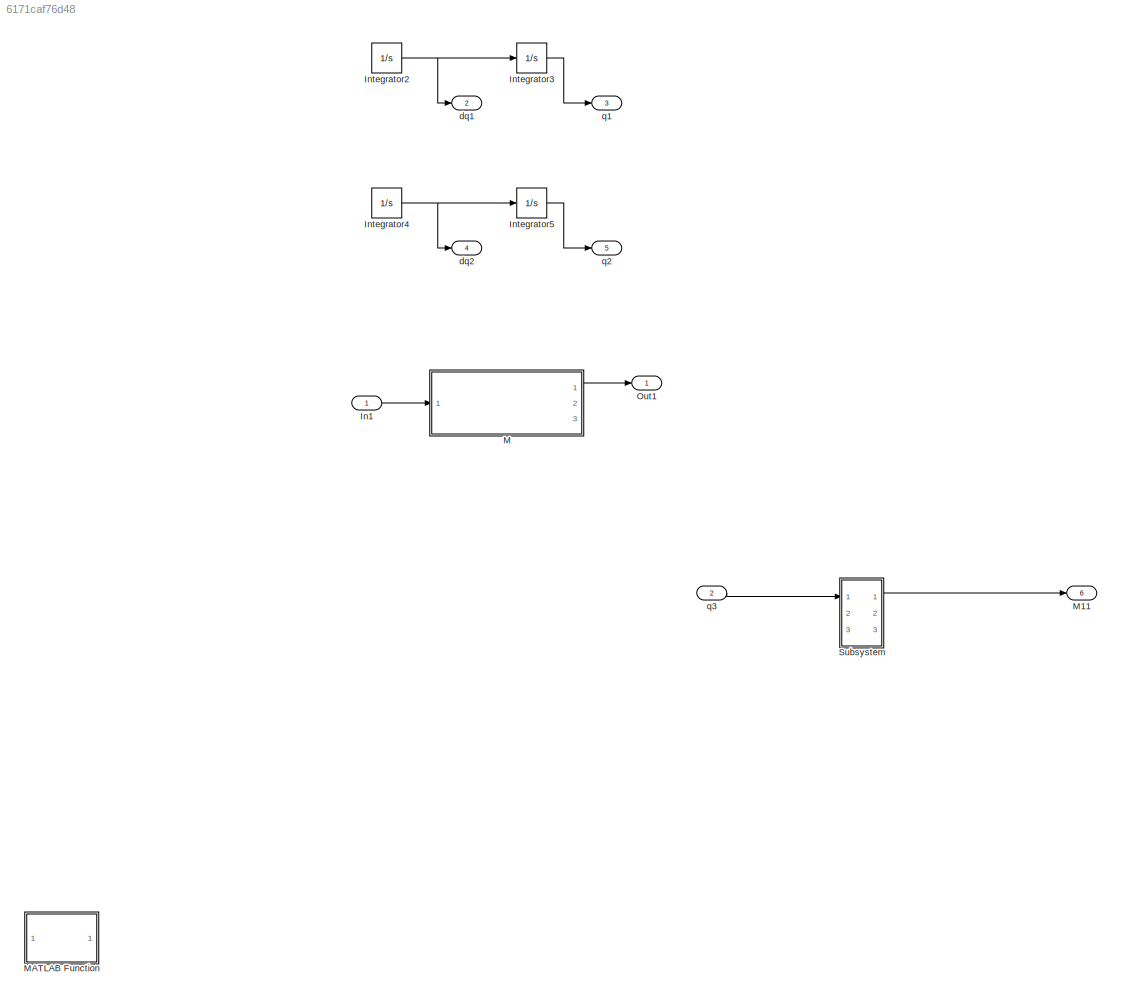
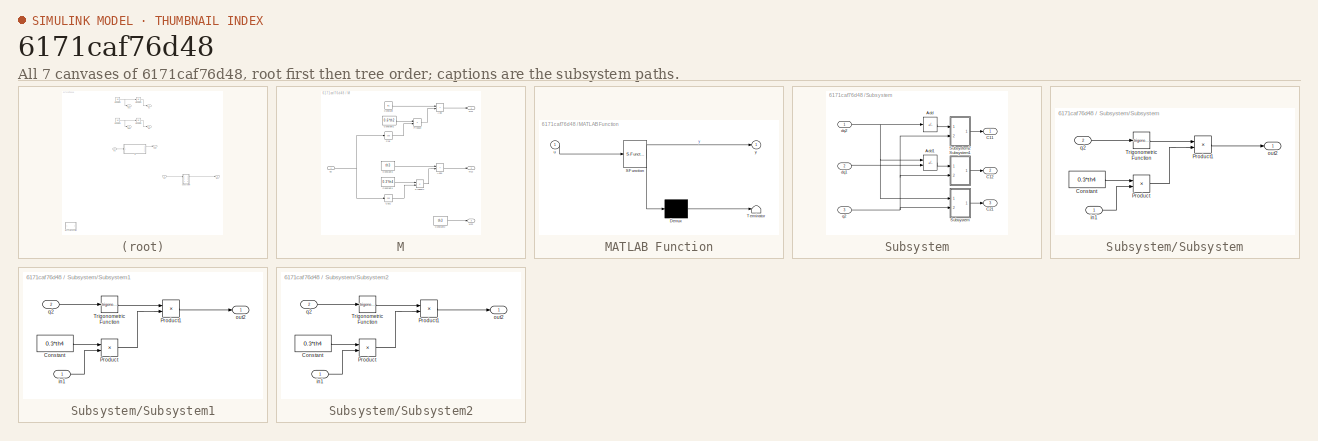
[diagram: thumbnail index - all 7 canvases of the model, root first then tree order]
MODEL slx_6171caf76d48
KIND model
CONFIG AbsTol = auto
CONFIG EnableMultiTasking = off
CONFIG FixedStep = auto
CONFIG MaxStep = auto
CONFIG MinStep = auto
CONFIG RelTol = 1e-3
CONFIG SampleTimeConstraint = Unconstrained
CONFIG SolverName = VariableStepAuto
CONFIG StartTime = 0.0
CONFIG StopTime = 10.0
BLOCK [Inport] In1
BLOCK [Integrator] Integrator2
  Ports = [1, 1]
BLOCK [Integrator] Integrator3
  Ports = [1, 1]
BLOCK [Integrator] Integrator4
  Ports = [1, 1]
BLOCK [Integrator] Integrator5
  Ports = [1, 1]
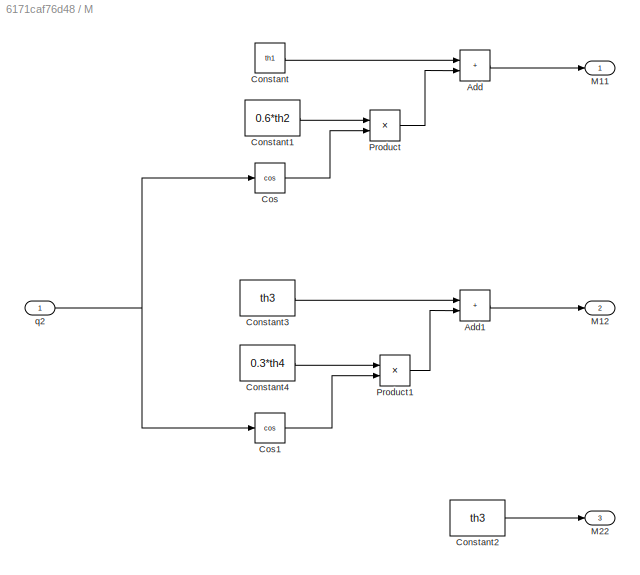
BLOCK [SubSystem] M
  Ports = [1, 3]
  RequestExecContextInheritance = off
BLOCK [Sum] M/Add
  IconShape = rectangular
  Ports = [2, 1]
BLOCK [Sum] M/Add1
  IconShape = rectangular
  Ports = [2, 1]
BLOCK [Constant] M/Constant
  Value = th1
BLOCK [Constant] M/Constant1
  Value = 0.6*th2
BLOCK [Constant] M/Constant2
  Value = th3
BLOCK [Constant] M/Constant3
  Value = th3
BLOCK [Constant] M/Constant4
  Value = 0.3*th4
BLOCK [Trigonometry] M/Cos
  Operator = cos
  Ports = [1, 1]
BLOCK [Trigonometry] M/Cos1
  Operator = cos
  Ports = [1, 1]
BLOCK [Outport] M/M11
BLOCK [Outport] M/M12
  Port = 2
BLOCK [Outport] M/M22
  Port = 3
BLOCK [Product] M/Product
  Ports = [2, 1]
BLOCK [Product] M/Product1
  Ports = [2, 1]
BLOCK [Inport] M/q2
BLOCK [Outport] M11
  Port = 6
BLOCK [SubSystem] MATLAB Function
  ErrorFcn = Stateflow.Translate.translate
  PermitHierarchicalResolution = ExplicitOnly
  Ports = [1, 1]
  RequestExecContextInheritance = off
  SFBlockType = MATLAB Function
  TreatAsAtomicUnit = on
BLOCK [Demux] MATLAB Function/ Demux 
  Outputs = 1
  Ports = [1, 1]
BLOCK [S-Function] MATLAB Function/ SFunction 
  EnableBusSupport = off
  FunctionName = sf_sfun
  Parameters = data
  PortCounts = [1 2]
  Ports = [1, 2]
  SFcnIsStateOwnerBlock = off
  SFunctionDeploymentMode = off
  Tag = Stateflow S-Function 2
BLOCK [Terminator] MATLAB Function/ Terminator 
BLOCK [Inport] MATLAB Function/u
BLOCK [Outport] MATLAB Function/y
BLOCK [Outport] Out1
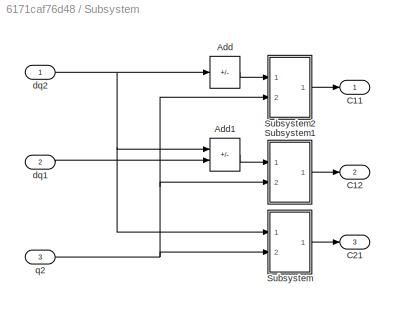
BLOCK [SubSystem] Subsystem
  Ports = [3, 3]
  RequestExecContextInheritance = off
BLOCK [Sum] Subsystem/Add
  IconShape = rectangular
  Inputs = -
  Ports = [1, 1]
BLOCK [Sum] Subsystem/Add1
  IconShape = rectangular
  Inputs = --
  Ports = [2, 1]
BLOCK [Outport] Subsystem/C11
BLOCK [Outport] Subsystem/C12
  Port = 2
BLOCK [Outport] Subsystem/C21
  Port = 3
BLOCK [SubSystem] Subsystem/Subsystem
  Ports = [2, 1]
  RequestExecContextInheritance = off
BLOCK [Constant] Subsystem/Subsystem/Constant
  Value = 0.3*th4
BLOCK [Product] Subsystem/Subsystem/Product
  Ports = [2, 1]
BLOCK [Product] Subsystem/Subsystem/Product1
  Ports = [2, 1]
BLOCK [Trigonometry] Subsystem/Subsystem/Trigonometric Function
  Ports = [1, 1]
BLOCK [Inport] Subsystem/Subsystem/in1
BLOCK [Outport] Subsystem/Subsystem/out2
BLOCK [Inport] Subsystem/Subsystem/q2
  Port = 2
BLOCK [SubSystem] Subsystem/Subsystem1
  Ports = [2, 1]
  RequestExecContextInheritance = off
BLOCK [Constant] Subsystem/Subsystem1/Constant
  Value = 0.3*th4
BLOCK [Product] Subsystem/Subsystem1/Product
  Ports = [2, 1]
BLOCK [Product] Subsystem/Subsystem1/Product1
  Ports = [2, 1]
BLOCK [Trigonometry] Subsystem/Subsystem1/Trigonometric Function
  Ports = [1, 1]
BLOCK [Inport] Subsystem/Subsystem1/in1
BLOCK [Outport] Subsystem/Subsystem1/out2
BLOCK [Inport] Subsystem/Subsystem1/q2
  Port = 2
BLOCK [SubSystem] Subsystem/Subsystem2
  Ports = [2, 1]
  RequestExecContextInheritance = off
BLOCK [Constant] Subsystem/Subsystem2/Constant
  Value = 0.3*th4
BLOCK [Product] Subsystem/Subsystem2/Product
  Ports = [2, 1]
BLOCK [Product] Subsystem/Subsystem2/Product1
  Ports = [2, 1]
BLOCK [Trigonometry] Subsystem/Subsystem2/Trigonometric Function
  Ports = [1, 1]
BLOCK [Inport] Subsystem/Subsystem2/in1
BLOCK [Outport] Subsystem/Subsystem2/out2
BLOCK [Inport] Subsystem/Subsystem2/q2
  Port = 2
BLOCK [Inport] Subsystem/dq1
  Port = 2
BLOCK [Inport] Subsystem/dq2
BLOCK [Inport] Subsystem/q2
  Port = 3
BLOCK [Outport] dq1
  Port = 2
BLOCK [Outport] dq2
  Port = 4
BLOCK [Outport] q1
  Port = 3
BLOCK [Outport] q2
  Port = 5
BLOCK [Inport] q3
  Port = 2
LINE In1:1 -> M:1
NET Integrator2:1 -> Integrator3:1, dq1:1
LINE Integrator3:1 -> q1:1
NET Integrator4:1 -> Integrator5:1, dq2:1
LINE Integrator5:1 -> q2:1
LINE M/Add1:1 -> M/M12:1
LINE M/Add:1 -> M/M11:1
LINE M/Constant1:1 -> M/Product:1
LINE M/Constant2:1 -> M/M22:1
LINE M/Constant3:1 -> M/Add1:1
LINE M/Constant4:1 -> M/Product1:1
LINE M/Constant:1 -> M/Add:1
LINE M/Cos1:1 -> M/Product1:2
LINE M/Cos:1 -> M/Product:2
LINE M/Product1:1 -> M/Add1:2
LINE M/Product:1 -> M/Add:2
NET M/q2:1 -> M/Cos1:1, M/Cos:1
LINE M:1 -> Out1:1
LINE Subsystem/Add1:1 -> Subsystem/Subsystem1:1
LINE Subsystem/Add:1 -> Subsystem/Subsystem2:1
LINE Subsystem/Subsystem/Constant:1 -> Subsystem/Subsystem/Product:1
LINE Subsystem/Subsystem/Product1:1 -> Subsystem/Subsystem/out2:1
LINE Subsystem/Subsystem/Product:1 -> Subsystem/Subsystem/Product1:2
LINE Subsystem/Subsystem/Trigonometric Function:1 -> Subsystem/Subsystem/Product1:1
LINE Subsystem/Subsystem/in1:1 -> Subsystem/Subsystem/Product:2
LINE Subsystem/Subsystem/q2:1 -> Subsystem/Subsystem/Trigonometric Function:1
LINE Subsystem/Subsystem1/Constant:1 -> Subsystem/Subsystem1/Product:1
LINE Subsystem/Subsystem1/Product1:1 -> Subsystem/Subsystem1/out2:1
LINE Subsystem/Subsystem1/Product:1 -> Subsystem/Subsystem1/Product1:2
LINE Subsystem/Subsystem1/Trigonometric Function:1 -> Subsystem/Subsystem1/Product1:1
LINE Subsystem/Subsystem1/in1:1 -> Subsystem/Subsystem1/Product:2
LINE Subsystem/Subsystem1/q2:1 -> Subsystem/Subsystem1/Trigonometric Function:1
LINE Subsystem/Subsystem1:1 -> Subsystem/C12:1
LINE Subsystem/Subsystem2/Constant:1 -> Subsystem/Subsystem2/Product:1
LINE Subsystem/Subsystem2/Product1:1 -> Subsystem/Subsystem2/out2:1
LINE Subsystem/Subsystem2/Product:1 -> Subsystem/Subsystem2/Product1:2
LINE Subsystem/Subsystem2/Trigonometric Function:1 -> Subsystem/Subsystem2/Product1:1
LINE Subsystem/Subsystem2/in1:1 -> Subsystem/Subsystem2/Product:2
LINE Subsystem/Subsystem2/q2:1 -> Subsystem/Subsystem2/Trigonometric Function:1
LINE Subsystem/Subsystem2:1 -> Subsystem/C11:1
LINE Subsystem/Subsystem:1 -> Subsystem/C21:1
LINE Subsystem/dq1:1 -> Subsystem/Add1:2
NET Subsystem/dq2:1 -> Subsystem/Add1:1, Subsystem/Add:1, Subsystem/Subsystem:1
NET Subsystem/q2:1 -> Subsystem/Subsystem1:2, Subsystem/Subsystem2:2, Subsystem/Subsystem:2
LINE Subsystem:1 -> M11:1
LINE q3:1 -> Subsystem:1
note: NET lines group one-source signal fan-out (src -> all destinations, sorted); 1:1 wires keep LINE
CHART MATLAB Function states=1 transitions=1
  STATE_LABEL 'eML_blk_kernel()'
  STATE_LABEL 'SCRIPT:\nfunction y = fcn(u, data)\n\ny = u;\n'
CHART  states=0 transitions=0
